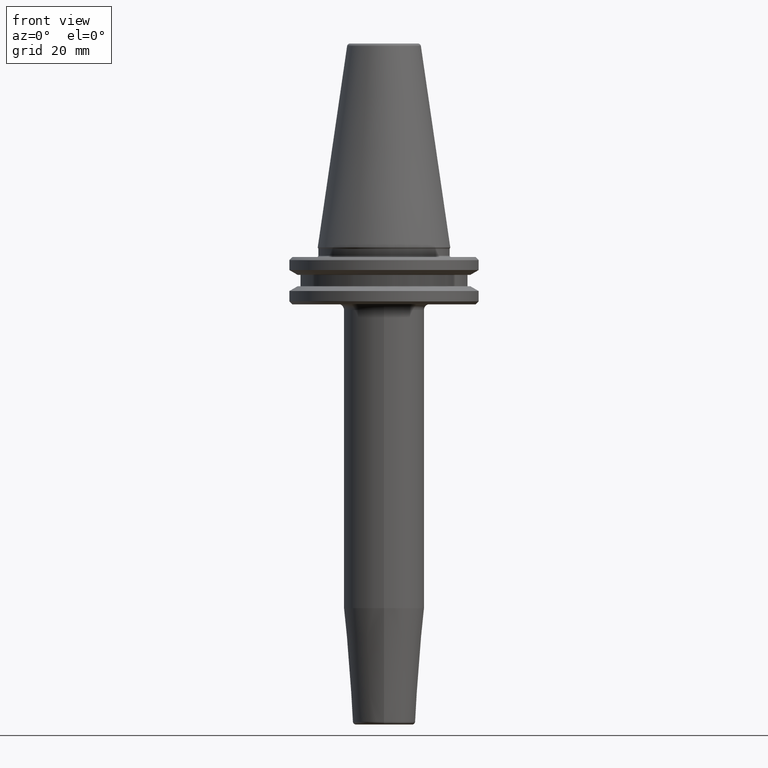
[diagram: clean part render]
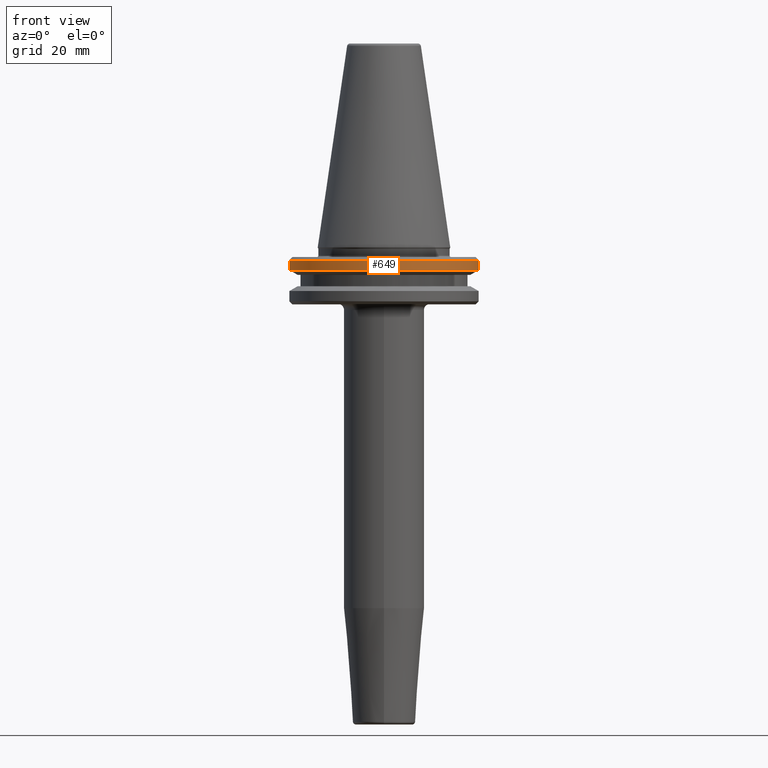
[diagram: same view with one face highlighted and labeled with its STEP entity id]
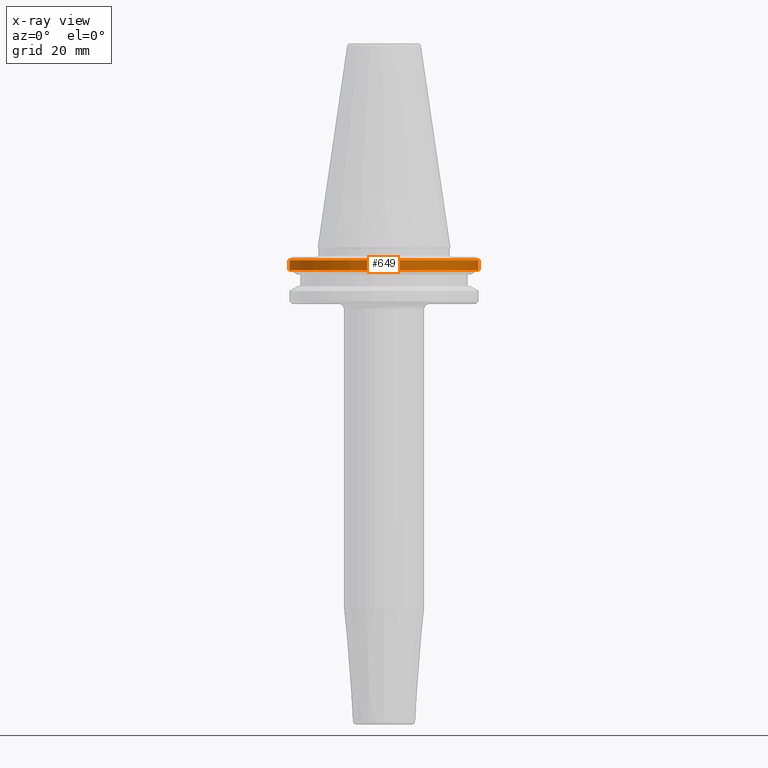
[diagram: x-ray of the same camera — body ghosted, the highlighted face saturated]
A machine part, front view. The second image highlights one B-rep face of the part: STEP entity #649.
The next image is the same camera in x-ray: the body ghosted, the highlighted face saturated — about 0% of this face is hidden behind the body in this view.
In plain terms, the highlighted cylindrical surface (partial cylindrical patch) has radius 31.75 mm, axis along (-0, -0, 1).
Its self-contained STEP definition (entity closure, byte-faithful):
#55 = LINE ( 'NONE', #94, #765 ) ;
#56 = EDGE_CURVE ( 'NONE', #352, #961, #691, .T. ) ;
#94 = CARTESIAN_POINT ( 'NONE',  ( -31.75000000000000000, 3.888253587292846500E-015, 113.5216080541959500 ) ) ;
#141 = CARTESIAN_POINT ( 'NONE',  ( -31.75000000000000000, 3.888253587292846500E-015, -7.578163357943284800 ) ) ;
#212 = CIRCLE ( 'NONE', #454, 31.75000000000000000 ) ;
#231 = DIRECTION ( 'NONE',  ( -0.0000000000000000000, -0.0000000000000000000, 1.000000000000000000 ) ) ;
#324 = DIRECTION ( 'NONE',  ( 1.000000000000000000, 0.0000000000000000000, 0.0000000000000000000 ) ) ;
#352 = VERTEX_POINT ( 'NONE', #1181 ) ;
#392 = DIRECTION ( 'NONE',  ( -0.0000000000000000000, -0.0000000000000000000, 1.000000000000000000 ) ) ;
#418 = ORIENTED_EDGE ( 'NONE', *, *, #720, .T. ) ;
#420 = VECTOR ( 'NONE', #1241, 1000.000000000000000 ) ;
#448 = CARTESIAN_POINT ( 'NONE',  ( 0.0000000000000000000, 0.0000000000000000000, -4.365685424949250000 ) ) ;
#454 = AXIS2_PLACEMENT_3D ( 'NONE', #448, #542, #1103 ) ;
#460 = ORIENTED_EDGE ( 'NONE', *, *, #848, .F. ) ;
#463 = CARTESIAN_POINT ( 'NONE',  ( 31.75000000000000000, 0.0000000000000000000, 113.5216080541959500 ) ) ;
#487 = VERTEX_POINT ( 'NONE', #141 ) ;
#542 = DIRECTION ( 'NONE',  ( -0.0000000000000000000, -0.0000000000000000000, 1.000000000000000000 ) ) ;
#606 = CARTESIAN_POINT ( 'NONE',  ( 0.0000000000000000000, 0.0000000000000000000, -7.578163357943284800 ) ) ;
#633 = AXIS2_PLACEMENT_3D ( 'NONE', #1164, #719, #920 ) ;
#649 = ADVANCED_FACE ( 'NONE', ( #717 ), #953, .T. ) ;
#657 = EDGE_CURVE ( 'NONE', #1198, #961, #212, .T. ) ;
#673 = AXIS2_PLACEMENT_3D ( 'NONE', #606, #231, #324 ) ;
#691 = LINE ( 'NONE', #463, #420 ) ;
#717 = FACE_OUTER_BOUND ( 'NONE', #867, .T. ) ;
#719 = DIRECTION ( 'NONE',  ( -0.0000000000000000000, -0.0000000000000000000, 1.000000000000000000 ) ) ;
#720 = EDGE_CURVE ( 'NONE', #487, #352, #886, .T. ) ;
#765 = VECTOR ( 'NONE', #392, 1000.000000000000000 ) ;
#848 = EDGE_CURVE ( 'NONE', #487, #1198, #55, .T. ) ;
#867 = EDGE_LOOP ( 'NONE', ( #460, #418, #1173, #1043 ) ) ;
#886 = CIRCLE ( 'NONE', #673, 31.75000000000000000 ) ;
#920 = DIRECTION ( 'NONE',  ( 1.000000000000000000, 0.0000000000000000000, 0.0000000000000000000 ) ) ;
#953 = CYLINDRICAL_SURFACE ( 'NONE', #633, 31.75000000000000000 ) ;
#961 = VERTEX_POINT ( 'NONE', #979 ) ;
#979 = CARTESIAN_POINT ( 'NONE',  ( 31.75000000000000000, 0.0000000000000000000, -4.365685424949250000 ) ) ;
#1043 = ORIENTED_EDGE ( 'NONE', *, *, #657, .F. ) ;
#1103 = DIRECTION ( 'NONE',  ( 1.000000000000000000, 0.0000000000000000000, 0.0000000000000000000 ) ) ;
#1132 = CARTESIAN_POINT ( 'NONE',  ( -31.75000000000000000, 3.888253587292846500E-015, -4.365685424949250000 ) ) ;
#1164 = CARTESIAN_POINT ( 'NONE',  ( 0.0000000000000000000, 0.0000000000000000000, 113.5216080541959500 ) ) ;
#1173 = ORIENTED_EDGE ( 'NONE', *, *, #56, .T. ) ;
#1181 = CARTESIAN_POINT ( 'NONE',  ( 31.75000000000000000, 0.0000000000000000000, -7.578163357943284800 ) ) ;
#1198 = VERTEX_POINT ( 'NONE', #1132 ) ;
#1241 = DIRECTION ( 'NONE',  ( -0.0000000000000000000, -0.0000000000000000000, 1.000000000000000000 ) ) ;